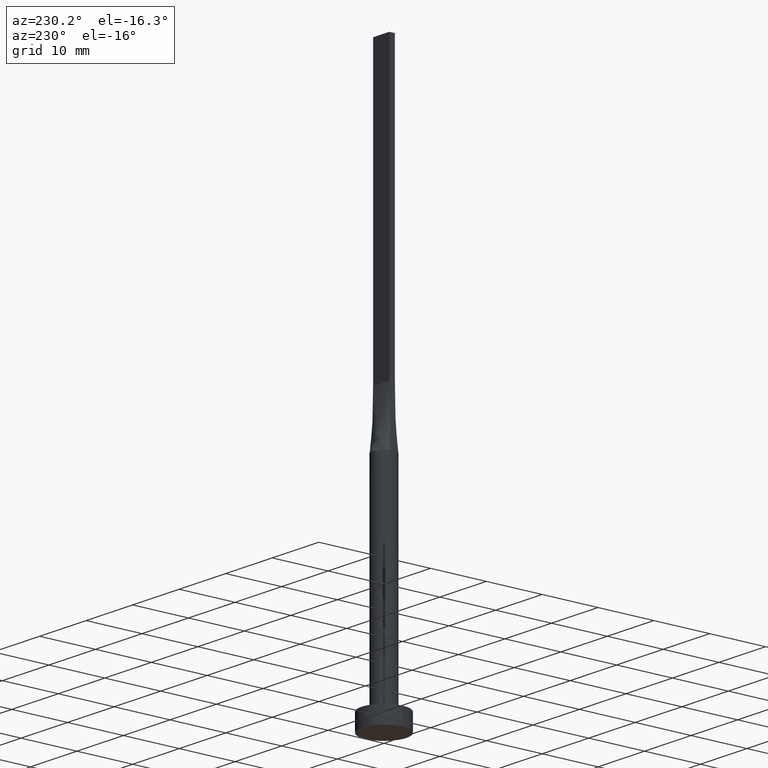
[diagram: clean part render]
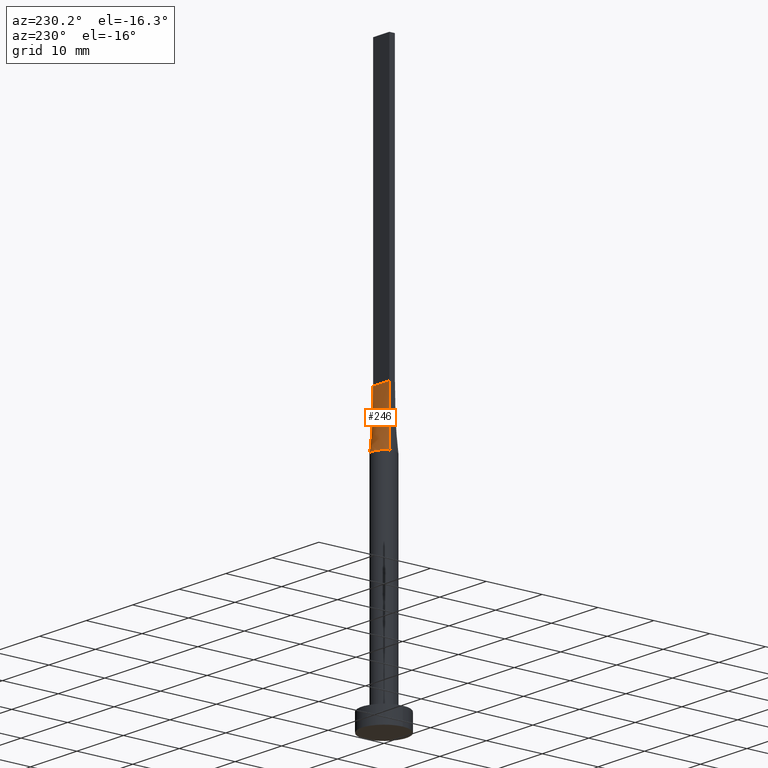
[diagram: same view with one face highlighted and labeled with its STEP entity id]
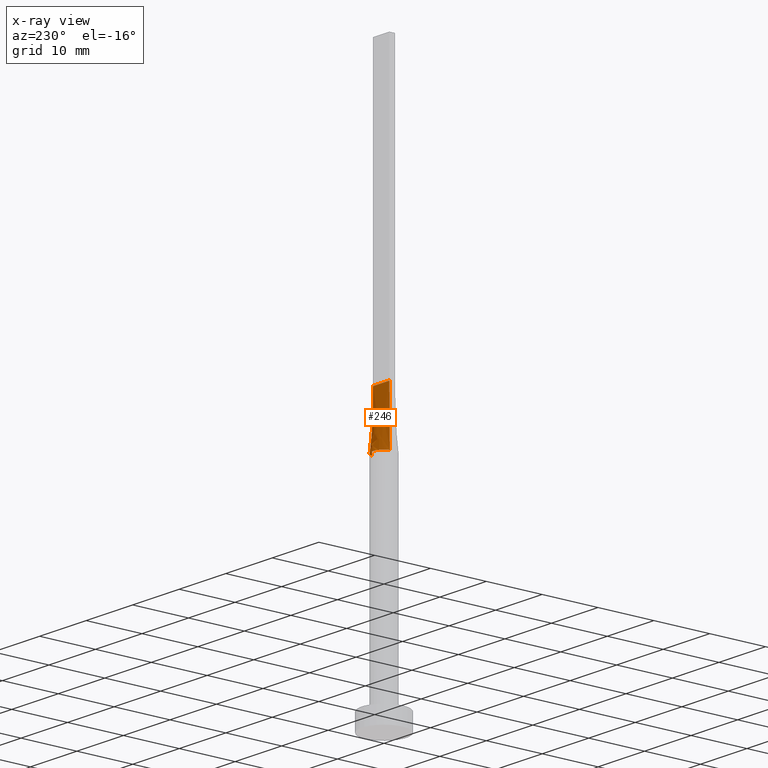
[diagram: x-ray of the same camera — body ghosted, the highlighted face saturated]
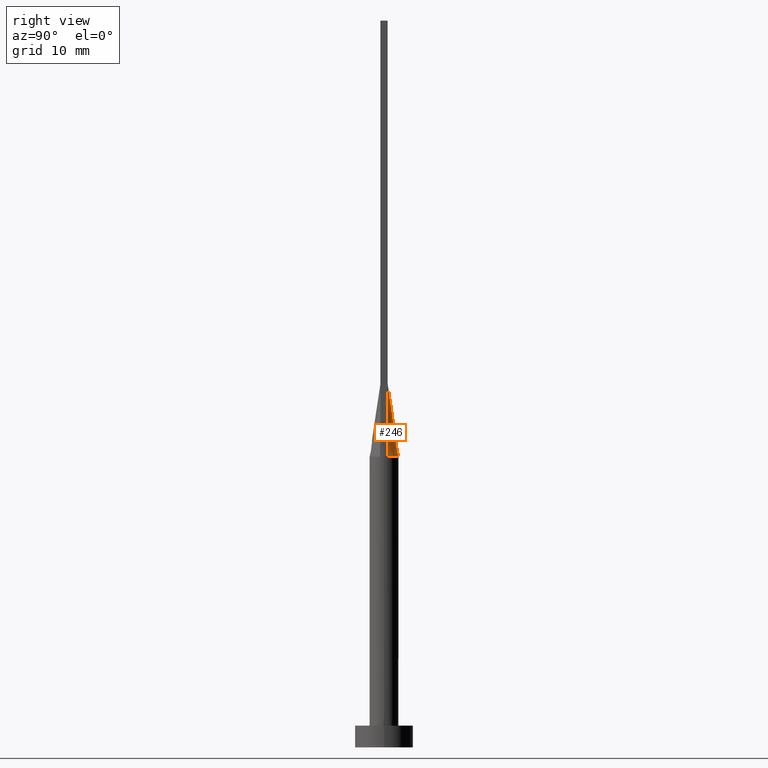
[diagram: same view with one face highlighted and labeled with its STEP entity id]
A machine part, auxiliary view. The second image highlights one B-rep face of the part: STEP entity #246.
The next image is the same camera in x-ray: the body ghosted, the highlighted face saturated — about 0% of this face is hidden behind the body in this view.
A second angle (right view) of the same face is appended — the face is thin or edge-on in the first view.
In plain terms, the highlighted face is a freeform B-spline surface patch.
Its self-contained STEP definition (entity closure, byte-faithful):
#18 = CARTESIAN_POINT ( 'NONE',  ( -1.879022738048941710, 0.7035303061092221810, 40.00000000000000000 ) ) ;
#20 = EDGE_CURVE ( 'NONE', #469, #278, #352, .T. ) ;
#23 = CARTESIAN_POINT ( 'NONE',  ( 0.5022746254375803909, 1.951069421695587947, 40.00000000000000000 ) ) ;
#25 = CARTESIAN_POINT ( 'NONE',  ( -0.1458333333333343695, 0.5000000000000002220, 50.00000000000000000 ) ) ;
#37 = EDGE_CURVE ( 'NONE', #301, #278, #118, .T. ) ;
#44 = CARTESIAN_POINT ( 'NONE',  ( 1.616149014776643522, 1.193458220519943103, 40.00000000000000000 ) ) ;
#48 = CARTESIAN_POINT ( 'NONE',  ( 1.749999999999998890, 0.5000000000000002220, 50.00000000000000000 ) ) ;
#59 = CARTESIAN_POINT ( 'NONE',  ( -1.155438169178558017, 1.647245198242353936, 40.00000000000001421 ) ) ;
#68 = CARTESIAN_POINT ( 'NONE',  ( 1.020833333333331927, 0.5000000000000002220, 50.00000000000000000 ) ) ;
#75 = CARTESIAN_POINT ( 'NONE',  ( 0.1458333333333322601, 0.5000000000000002220, 50.00000000000000000 ) ) ;
#103 = CARTESIAN_POINT ( 'NONE',  ( 1.749999999999999778, 0.5000000000000002220, 50.00000000000000000 ) ) ;
#111 = CARTESIAN_POINT ( 'NONE',  ( -1.458333333333333481, 0.5000000000000002220, 50.00000000000000000 ) ) ;
#117 = CARTESIAN_POINT ( 'NONE',  ( 0.9545234919502409987, 1.774214358793529955, 40.00000000000000000 ) ) ;
#118 = LINE ( 'NONE', #178, #276 ) ;
#121 = CARTESIAN_POINT ( 'NONE',  ( -1.749999999999999778, 0.5000000000000002220, 50.00000000000000000 ) ) ;
#130 = CARTESIAN_POINT ( 'NONE',  ( 1.923154993136894975, 0.5494733089275741778, 40.00000000000000000 ) ) ;
#136 = CARTESIAN_POINT ( 'NONE',  ( 1.923047895281646325, 0.5494422557947561403, 40.00000000000000000 ) ) ;
#148 = CARTESIAN_POINT ( 'NONE',  ( -1.486037034853319616, 1.356520562679218056, 40.00000000000000000 ) ) ;
#149 = CARTESIAN_POINT ( 'NONE',  ( 1.604166666666665408, 0.5000000000000002220, 50.00000000000000000 ) ) ;
#163 = CARTESIAN_POINT ( 'NONE',  ( 1.166666666666665186, 0.5000000000000002220, 50.00000000000000000 ) ) ;
#171 = CARTESIAN_POINT ( 'NONE',  ( -1.604166666666666519, 0.5000000000000002220, 50.00000000000000000 ) ) ;
#173 = CARTESIAN_POINT ( 'NONE',  ( 0.7291666666666652974, 0.5000000000000002220, 50.00000000000000000 ) ) ;
#178 = CARTESIAN_POINT ( 'NONE',  ( -1.836523947640823051, 0.5247211278973779036, 45.00000000000000000 ) ) ;
#191 = B_SPLINE_CURVE_WITH_KNOTS ( 'NONE', 3,
 ( #130, #267, #452, #44, #495, #502, #335, #327, #473, #325, #234, #415, #59, #148, #245, #421, #18, #374 ),
 .UNSPECIFIED., .F., .F.,
 ( 4, 2, 2, 2, 2, 2, 2, 2, 4 ),
 ( 0.000000000000000000, 0.1249999999999999722, 0.2500000000000000000, 0.3750000000000000000, 0.5000000000000001110, 0.6250000000000001110, 0.7500000000000000000, 0.8750000000000000000, 1.000000000000000000 ),
 .UNSPECIFIED. ) ;
#195 = VERTEX_POINT ( 'NONE', #363 ) ;
#200 = CARTESIAN_POINT ( 'NONE',  ( -0.5022746254375797248, 1.951069421695588169, 40.00000000000000000 ) ) ;
#204 = CARTESIAN_POINT ( 'NONE',  ( -0.2916666666666677954, 0.5000000000000002220, 50.00000000000000000 ) ) ;
#207 = CARTESIAN_POINT ( 'NONE',  ( -1.155438169178558017, 1.647245198242353936, 40.00000000000001421 ) ) ;
#216 = CARTESIAN_POINT ( 'NONE',  ( 1.486037034853319616, 1.356520562679217834, 39.99999999999997868 ) ) ;
#226 = CARTESIAN_POINT ( 'NONE',  ( 1.836523947640823051, 0.5247211278973783477, 45.00000000000000000 ) ) ;
#234 = CARTESIAN_POINT ( 'NONE',  ( -0.5022746254375797248, 1.951069421695588169, 40.00000000000000000 ) ) ;
#245 = CARTESIAN_POINT ( 'NONE',  ( -1.616149014776643966, 1.193458220519943103, 40.00000000000002132 ) ) ;
#246 = ADVANCED_FACE ( 'NONE', ( #538 ), #387, .T. ) ;
#249 = CARTESIAN_POINT ( 'NONE',  ( -0.7291666666666674068, 0.5000000000000002220, 50.00000000000000000 ) ) ;
#262 = ORIENTED_EDGE ( 'NONE', *, *, #457, .T. ) ;
#264 = DIRECTION ( 'NONE',  ( 0.01730198768854152372, -0.004943425053868931440, 0.9998380887777591486 ) ) ;
#267 = CARTESIAN_POINT ( 'NONE',  ( 1.879022738048942154, 0.7035303061092218480, 39.99999999999999289 ) ) ;
#275 = CARTESIAN_POINT ( 'NONE',  ( 1.458333333333332149, 0.5000000000000002220, 50.00000000000000000 ) ) ;
#276 = VECTOR ( 'NONE', #264, 1000.000000000000227 ) ;
#278 = VERTEX_POINT ( 'NONE', #393 ) ;
#294 = CARTESIAN_POINT ( 'NONE',  ( -1.879022738048941710, 0.7035303061092221810, 40.00000000000000000 ) ) ;
#298 = CARTESIAN_POINT ( 'NONE',  ( 0.5833333333333319271, 0.5000000000000002220, 50.00000000000000000 ) ) ;
#301 = VERTEX_POINT ( 'NONE', #347 ) ;
#305 = ORIENTED_EDGE ( 'NONE', *, *, #20, .F. ) ;
#318 = VECTOR ( 'NONE', #404, 1000.000000000000227 ) ;
#325 = CARTESIAN_POINT ( 'NONE',  ( -0.2514338042514528415, 1.999999999999999556, 40.00000000000000000 ) ) ;
#327 = CARTESIAN_POINT ( 'NONE',  ( 0.5022746254375803909, 1.951069421695587947, 40.00000000000000000 ) ) ;
#335 = CARTESIAN_POINT ( 'NONE',  ( 0.9545234919502409987, 1.774214358793529955, 40.00000000000000000 ) ) ;
#338 = CARTESIAN_POINT ( 'NONE',  ( 0.2916666666666655194, 0.5000000000000002220, 50.00000000000000000 ) ) ;
#341 = ORIENTED_EDGE ( 'NONE', *, *, #385, .F. ) ;
#343 = CARTESIAN_POINT ( 'NONE',  ( -1.923047895281646325, 0.5494422557947555852, 40.00000000000000000 ) ) ;
#347 = CARTESIAN_POINT ( 'NONE',  ( -1.923179810488875541, 0.5494804890868837388, 40.00000000000000000 ) ) ;
#352 = LINE ( 'NONE', #439, #496 ) ;
#363 = CARTESIAN_POINT ( 'NONE',  ( 1.923154993136894975, 0.5494733089275741778, 40.00000000000000000 ) ) ;
#374 = CARTESIAN_POINT ( 'NONE',  ( -1.923179810488875541, 0.5494804890868837388, 40.00000000000000000 ) ) ;
#376 = CARTESIAN_POINT ( 'NONE',  ( 1.879022738048942154, 0.7035303061092218480, 39.99999999999999289 ) ) ;
#381 = CARTESIAN_POINT ( 'NONE',  ( -1.812374357931688884, 0.8669367617086288780, 40.00000000000001421 ) ) ;
#385 = EDGE_CURVE ( 'NONE', #195, #469, #536, .T. ) ;
#387 = B_SPLINE_SURFACE_WITH_KNOTS ( 'NONE', 3, 1, ( 
 ( #136, #48 ),
 ( #376, #149 ),
 ( #510, #275 ),
 ( #553, #163 ),
 ( #216, #68 ),
 ( #484, #173 ),
 ( #117, #298 ),
 ( #23, #338 ),
 ( #562, #75 ),
 ( #518, #25 ),
 ( #200, #204 ),
 ( #571, #438 ),
 ( #207, #249 ),
 ( #390, #567 ),
 ( #521, #430 ),
 ( #381, #111 ),
 ( #294, #171 ),
 ( #343, #121 ) ),
 .UNSPECIFIED., .F., .F., .F.,
 ( 4, 2, 2, 2, 2, 2, 2, 2, 4 ),
 ( 2, 2 ),
 ( 0.000000000000000000, 0.1249999999999999722, 0.2500000000000000000, 0.3750000000000000000, 0.5000000000000001110, 0.6250000000000001110, 0.7500000000000000000, 0.8750000000000000000, 1.000000000000000000 ),
 ( 0.000000000000000000, 1.000000000000000000 ),
 .UNSPECIFIED. ) ;
#390 = CARTESIAN_POINT ( 'NONE',  ( -1.486037034853319616, 1.356520562679218056, 40.00000000000000000 ) ) ;
#393 = CARTESIAN_POINT ( 'NONE',  ( -1.749999999999999778, 0.5000000000000002220, 50.00000000000000000 ) ) ;
#404 = DIRECTION ( 'NONE',  ( -0.01730198768854152372, -0.004943425053869007768, 0.9998380887777591486 ) ) ;
#415 = CARTESIAN_POINT ( 'NONE',  ( -0.9545234919502401105, 1.774214358793530177, 40.00000000000000000 ) ) ;
#421 = CARTESIAN_POINT ( 'NONE',  ( -1.812374357931688884, 0.8669367617086288780, 40.00000000000001421 ) ) ;
#430 = CARTESIAN_POINT ( 'NONE',  ( -1.166666666666666963, 0.5000000000000002220, 50.00000000000000000 ) ) ;
#438 = CARTESIAN_POINT ( 'NONE',  ( -0.5833333333333342585, 0.5000000000000002220, 50.00000000000000000 ) ) ;
#439 = CARTESIAN_POINT ( 'NONE',  ( -1.749999999999999778, 0.5000000000000002220, 50.00000000000000000 ) ) ;
#444 = DIRECTION ( 'NONE',  ( -1.000000000000000000, -0.000000000000000000, -0.000000000000000000 ) ) ;
#452 = CARTESIAN_POINT ( 'NONE',  ( 1.812374357931689328, 0.8669367617086293221, 40.00000000000002132 ) ) ;
#457 = EDGE_CURVE ( 'NONE', #195, #301, #191, .T. ) ;
#469 = VERTEX_POINT ( 'NONE', #103 ) ;
#473 = CARTESIAN_POINT ( 'NONE',  ( 0.2514338042514535632, 1.999999999999999556, 39.99999999999999289 ) ) ;
#484 = CARTESIAN_POINT ( 'NONE',  ( 1.155438169178558461, 1.647245198242353714, 40.00000000000000000 ) ) ;
#495 = CARTESIAN_POINT ( 'NONE',  ( 1.486037034853319616, 1.356520562679217834, 39.99999999999997868 ) ) ;
#496 = VECTOR ( 'NONE', #444, 1000.000000000000000 ) ;
#502 = CARTESIAN_POINT ( 'NONE',  ( 1.155438169178558461, 1.647245198242353714, 40.00000000000000000 ) ) ;
#510 = CARTESIAN_POINT ( 'NONE',  ( 1.812374357931689328, 0.8669367617086293221, 40.00000000000002132 ) ) ;
#518 = CARTESIAN_POINT ( 'NONE',  ( -0.2514338042514528415, 1.999999999999999556, 40.00000000000000000 ) ) ;
#521 = CARTESIAN_POINT ( 'NONE',  ( -1.616149014776643966, 1.193458220519943103, 40.00000000000002132 ) ) ;
#525 = ORIENTED_EDGE ( 'NONE', *, *, #37, .T. ) ;
#536 = LINE ( 'NONE', #226, #318 ) ;
#538 = FACE_OUTER_BOUND ( 'NONE', #545, .T. ) ;
#545 = EDGE_LOOP ( 'NONE', ( #262, #525, #305, #341 ) ) ;
#553 = CARTESIAN_POINT ( 'NONE',  ( 1.616149014776643522, 1.193458220519943103, 40.00000000000000000 ) ) ;
#562 = CARTESIAN_POINT ( 'NONE',  ( 0.2514338042514535632, 1.999999999999999556, 39.99999999999999289 ) ) ;
#567 = CARTESIAN_POINT ( 'NONE',  ( -1.020833333333333703, 0.5000000000000002220, 50.00000000000000000 ) ) ;
#571 = CARTESIAN_POINT ( 'NONE',  ( -0.9545234919502401105, 1.774214358793530177, 40.00000000000000000 ) ) ;